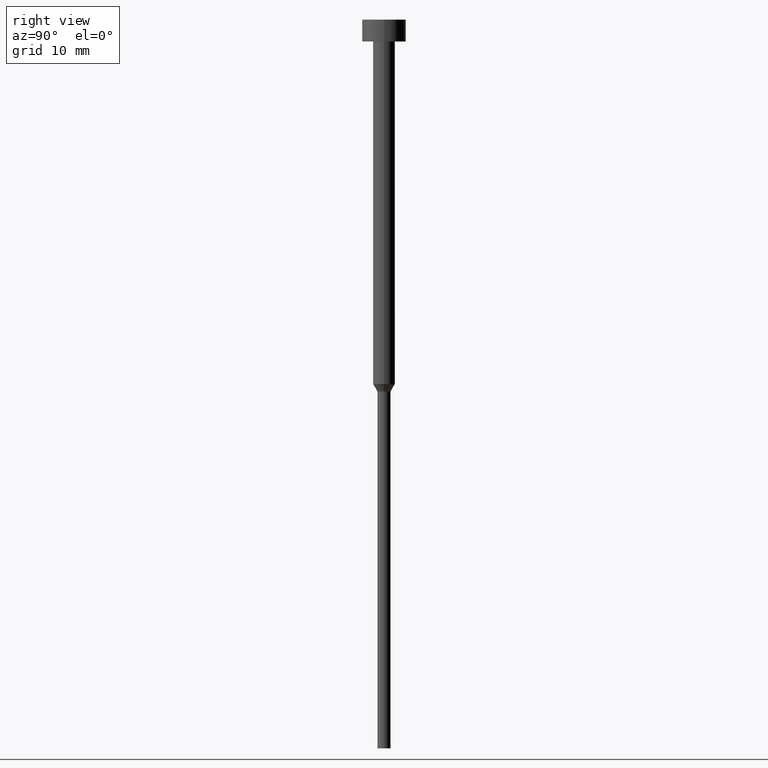
[diagram: clean part render]
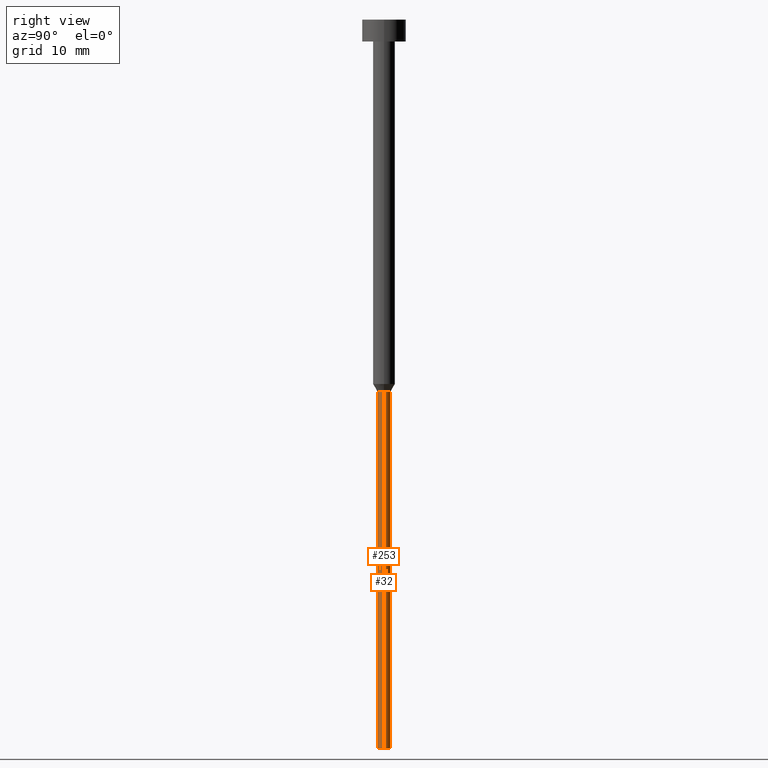
[diagram: same view with one multi-face feature highlighted, each face labeled with its STEP entity id]
A machine part, right view. The highlighted faces form ONE feature: a constant-radius fillet chain: 2 tangent blend faces with common blend radius 0.9 mm. The faces share edges in the B-rep.
Their STEP definitions:
[1] entity #253 (Cylinder):
#1 = CARTESIAN_POINT ( 'NONE',  ( -0.9000000000000000222, 1.102182119232617788E-16, -51.03923048454132783 ) ) ;
#4 = AXIS2_PLACEMENT_3D ( 'NONE', #252, #111, #197 ) ;
#9 = DIRECTION ( 'NONE',  ( -0.000000000000000000, -0.000000000000000000, 1.000000000000000000 ) ) ;
#11 = DIRECTION ( 'NONE',  ( -0.000000000000000000, -0.000000000000000000, 1.000000000000000000 ) ) ;
#13 = CARTESIAN_POINT ( 'NONE',  ( -0.9000000000000000222, 1.102182119232617788E-16, 0.000000000000000000 ) ) ;
#24 = VERTEX_POINT ( 'NONE', #187 ) ;
#66 = VERTEX_POINT ( 'NONE', #246 ) ;
#82 = CARTESIAN_POINT ( 'NONE',  ( 0.000000000000000000, 0.000000000000000000, -51.03923048454132783 ) ) ;
#100 = ORIENTED_EDGE ( 'NONE', *, *, #254, .F. ) ;
#101 = EDGE_CURVE ( 'NONE', #66, #256, #137, .T. ) ;
#111 = DIRECTION ( 'NONE',  ( -0.000000000000000000, -0.000000000000000000, 1.000000000000000000 ) ) ;
#116 = LINE ( 'NONE', #13, #212 ) ;
#120 = CIRCLE ( 'NONE', #186, 0.9000000000000000222 ) ;
#131 = CARTESIAN_POINT ( 'NONE',  ( 0.9000000000000000222, 0.000000000000000000, 0.000000000000000000 ) ) ;
#137 = LINE ( 'NONE', #131, #325 ) ;
#138 = EDGE_CURVE ( 'NONE', #209, #256, #343, .T. ) ;
#142 = ORIENTED_EDGE ( 'NONE', *, *, #138, .F. ) ;
#177 = ORIENTED_EDGE ( 'NONE', *, *, #263, .T. ) ;
#186 = AXIS2_PLACEMENT_3D ( 'NONE', #297, #9, #220 ) ;
#187 = CARTESIAN_POINT ( 'NONE',  ( -0.9000000000000000222, 1.102182119232617788E-16, -100.0000000000000000 ) ) ;
#188 = DIRECTION ( 'NONE',  ( 1.000000000000000000, 0.000000000000000000, 0.000000000000000000 ) ) ;
#191 = DIRECTION ( 'NONE',  ( -0.000000000000000000, -0.000000000000000000, 1.000000000000000000 ) ) ;
#197 = DIRECTION ( 'NONE',  ( 1.000000000000000000, 0.000000000000000000, 0.000000000000000000 ) ) ;
#205 = EDGE_LOOP ( 'NONE', ( #100, #177, #222, #142 ) ) ;
#209 = VERTEX_POINT ( 'NONE', #1 ) ;
#212 = VECTOR ( 'NONE', #11, 1000.000000000000000 ) ;
#220 = DIRECTION ( 'NONE',  ( 1.000000000000000000, 0.000000000000000000, 0.000000000000000000 ) ) ;
#222 = ORIENTED_EDGE ( 'NONE', *, *, #101, .T. ) ;
#246 = CARTESIAN_POINT ( 'NONE',  ( 0.9000000000000000222, 0.000000000000000000, -100.0000000000000000 ) ) ;
#247 = DIRECTION ( 'NONE',  ( -0.000000000000000000, -0.000000000000000000, 1.000000000000000000 ) ) ;
#249 = CYLINDRICAL_SURFACE ( 'NONE', #4, 0.9000000000000000222 ) ;
#252 = CARTESIAN_POINT ( 'NONE',  ( 0.000000000000000000, 0.000000000000000000, 0.000000000000000000 ) ) ;
#253 = ADVANCED_FACE ( 'NONE', ( #342 ), #249, .T. ) ;
#254 = EDGE_CURVE ( 'NONE', #24, #209, #116, .T. ) ;
#256 = VERTEX_POINT ( 'NONE', #341 ) ;
#263 = EDGE_CURVE ( 'NONE', #24, #66, #120, .T. ) ;
#273 = AXIS2_PLACEMENT_3D ( 'NONE', #82, #247, #188 ) ;
#297 = CARTESIAN_POINT ( 'NONE',  ( 0.000000000000000000, 0.000000000000000000, -100.0000000000000000 ) ) ;
#325 = VECTOR ( 'NONE', #191, 1000.000000000000000 ) ;
#341 = CARTESIAN_POINT ( 'NONE',  ( 0.9000000000000000222, 0.000000000000000000, -51.03923048454132783 ) ) ;
#342 = FACE_OUTER_BOUND ( 'NONE', #205, .T. ) ;
#343 = CIRCLE ( 'NONE', #273, 0.9000000000000000222 ) ;
[2] entity #32 (Cylinder):
#1 = CARTESIAN_POINT ( 'NONE',  ( -0.9000000000000000222, 1.102182119232617788E-16, -51.03923048454132783 ) ) ;
#5 = CARTESIAN_POINT ( 'NONE',  ( 0.000000000000000000, 0.000000000000000000, 0.000000000000000000 ) ) ;
#11 = DIRECTION ( 'NONE',  ( -0.000000000000000000, -0.000000000000000000, 1.000000000000000000 ) ) ;
#13 = CARTESIAN_POINT ( 'NONE',  ( -0.9000000000000000222, 1.102182119232617788E-16, 0.000000000000000000 ) ) ;
#24 = VERTEX_POINT ( 'NONE', #187 ) ;
#30 = DIRECTION ( 'NONE',  ( 1.000000000000000000, 0.000000000000000000, 0.000000000000000000 ) ) ;
#32 = ADVANCED_FACE ( 'NONE', ( #93 ), #292, .T. ) ;
#41 = AXIS2_PLACEMENT_3D ( 'NONE', #193, #242, #30 ) ;
#45 = ORIENTED_EDGE ( 'NONE', *, *, #254, .T. ) ;
#55 = DIRECTION ( 'NONE',  ( -0.000000000000000000, -0.000000000000000000, 1.000000000000000000 ) ) ;
#66 = VERTEX_POINT ( 'NONE', #246 ) ;
#93 = FACE_OUTER_BOUND ( 'NONE', #281, .T. ) ;
#101 = EDGE_CURVE ( 'NONE', #66, #256, #137, .T. ) ;
#116 = LINE ( 'NONE', #13, #212 ) ;
#125 = ORIENTED_EDGE ( 'NONE', *, *, #192, .T. ) ;
#131 = CARTESIAN_POINT ( 'NONE',  ( 0.9000000000000000222, 0.000000000000000000, 0.000000000000000000 ) ) ;
#132 = AXIS2_PLACEMENT_3D ( 'NONE', #5, #55, #294 ) ;
#135 = CARTESIAN_POINT ( 'NONE',  ( 0.000000000000000000, 0.000000000000000000, -51.03923048454132783 ) ) ;
#137 = LINE ( 'NONE', #131, #325 ) ;
#160 = DIRECTION ( 'NONE',  ( 1.000000000000000000, 0.000000000000000000, 0.000000000000000000 ) ) ;
#187 = CARTESIAN_POINT ( 'NONE',  ( -0.9000000000000000222, 1.102182119232617788E-16, -100.0000000000000000 ) ) ;
#191 = DIRECTION ( 'NONE',  ( -0.000000000000000000, -0.000000000000000000, 1.000000000000000000 ) ) ;
#192 = EDGE_CURVE ( 'NONE', #66, #24, #329, .T. ) ;
#193 = CARTESIAN_POINT ( 'NONE',  ( 0.000000000000000000, 0.000000000000000000, -100.0000000000000000 ) ) ;
#209 = VERTEX_POINT ( 'NONE', #1 ) ;
#212 = VECTOR ( 'NONE', #11, 1000.000000000000000 ) ;
#219 = EDGE_CURVE ( 'NONE', #256, #209, #298, .T. ) ;
#225 = ORIENTED_EDGE ( 'NONE', *, *, #101, .F. ) ;
#242 = DIRECTION ( 'NONE',  ( -0.000000000000000000, -0.000000000000000000, 1.000000000000000000 ) ) ;
#246 = CARTESIAN_POINT ( 'NONE',  ( 0.9000000000000000222, 0.000000000000000000, -100.0000000000000000 ) ) ;
#254 = EDGE_CURVE ( 'NONE', #24, #209, #116, .T. ) ;
#256 = VERTEX_POINT ( 'NONE', #341 ) ;
#275 = AXIS2_PLACEMENT_3D ( 'NONE', #135, #353, #160 ) ;
#281 = EDGE_LOOP ( 'NONE', ( #125, #45, #350, #225 ) ) ;
#292 = CYLINDRICAL_SURFACE ( 'NONE', #132, 0.9000000000000000222 ) ;
#294 = DIRECTION ( 'NONE',  ( 1.000000000000000000, 0.000000000000000000, 0.000000000000000000 ) ) ;
#298 = CIRCLE ( 'NONE', #275, 0.9000000000000000222 ) ;
#325 = VECTOR ( 'NONE', #191, 1000.000000000000000 ) ;
#329 = CIRCLE ( 'NONE', #41, 0.9000000000000000222 ) ;
#341 = CARTESIAN_POINT ( 'NONE',  ( 0.9000000000000000222, 0.000000000000000000, -51.03923048454132783 ) ) ;
#350 = ORIENTED_EDGE ( 'NONE', *, *, #219, .F. ) ;
#353 = DIRECTION ( 'NONE',  ( -0.000000000000000000, -0.000000000000000000, 1.000000000000000000 ) ) ;